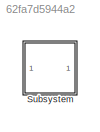
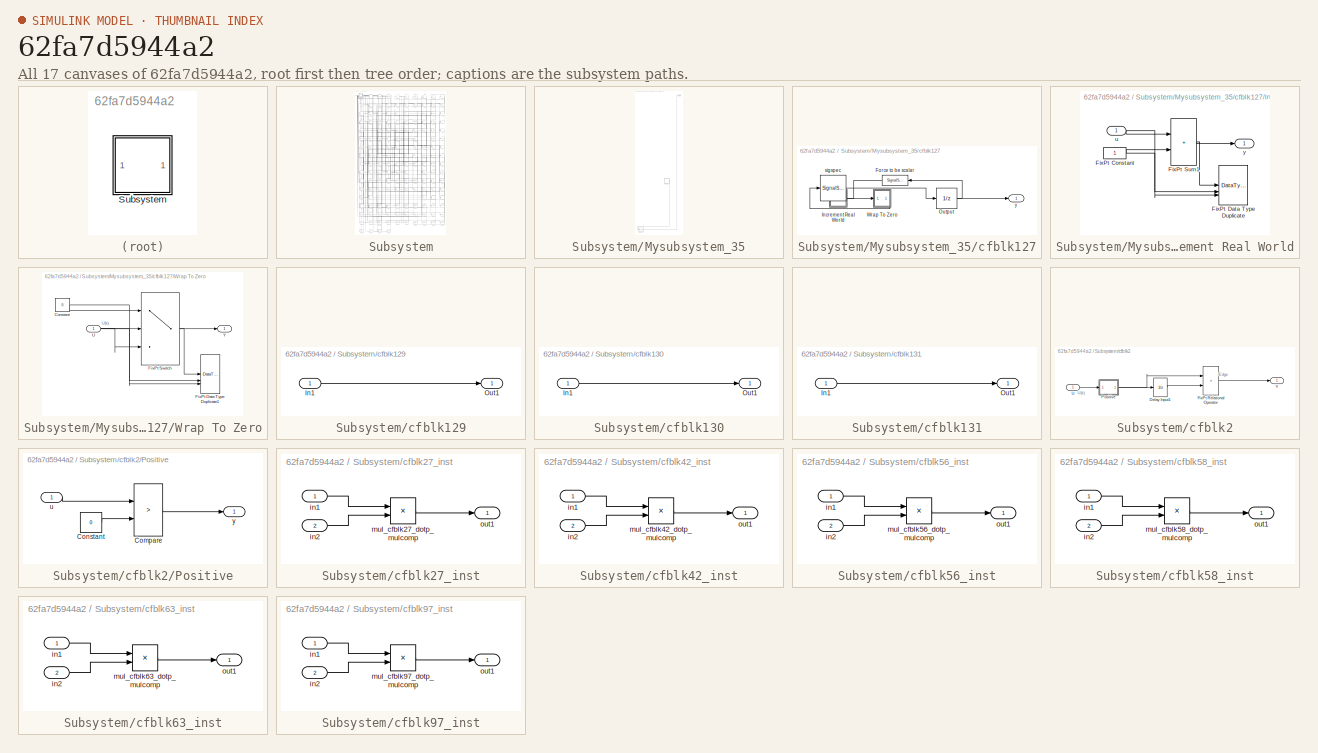
[diagram: thumbnail index - all 17 canvases of the model, root first then tree order]
MODEL slx_62fa7d5944a2
KIND model
CONFIG AbsTol = auto
CONFIG EnableMultiTasking = off
CONFIG FixedStep = auto
CONFIG MaxStep = auto
CONFIG MinStep = auto
CONFIG RelTol = 1e-3
CONFIG SampleTimeConstraint = Unconstrained
CONFIG SolverName = VariableStepAuto
CONFIG StartTime = 0.0
CONFIG StopTime = 10.0
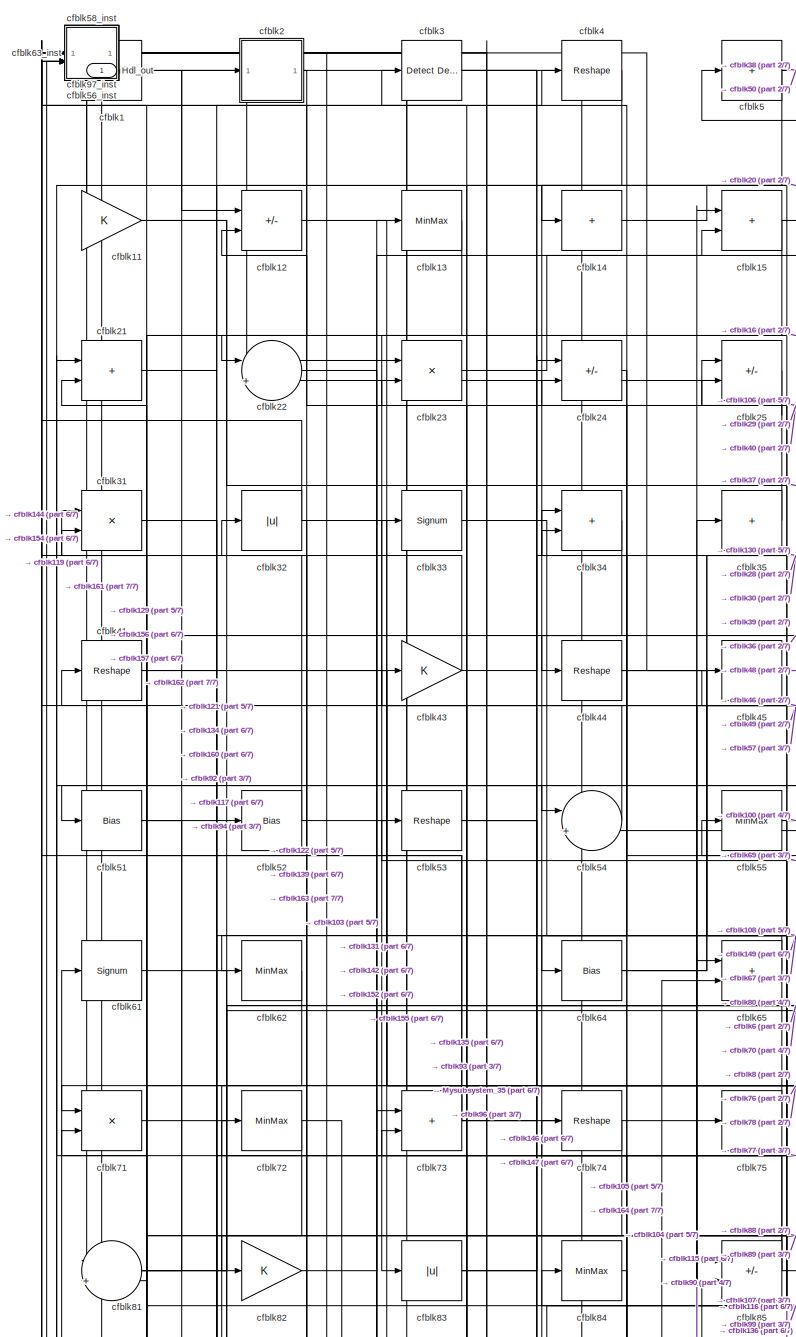
[diagram: Subsystem - part 1/7, top left region]
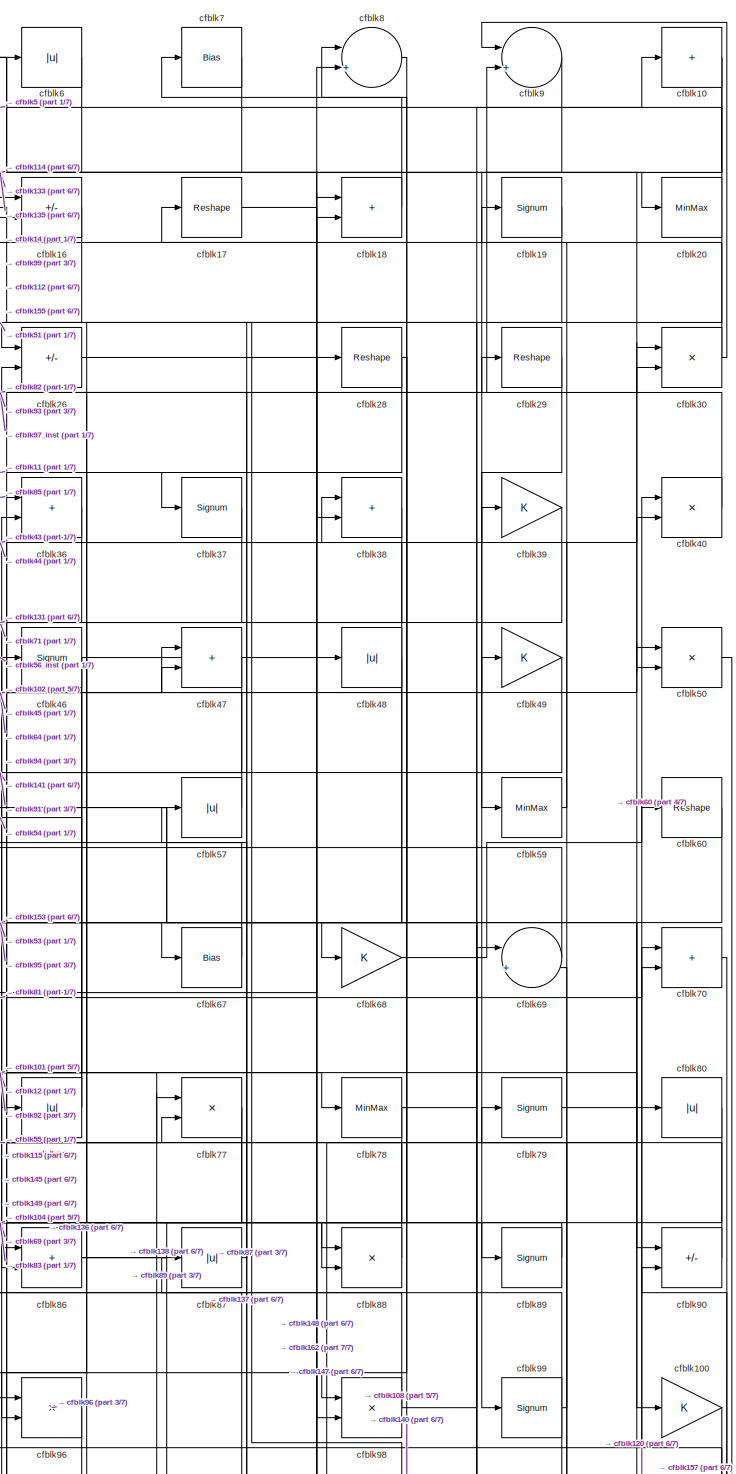
[diagram: Subsystem - part 2/7, top right region]
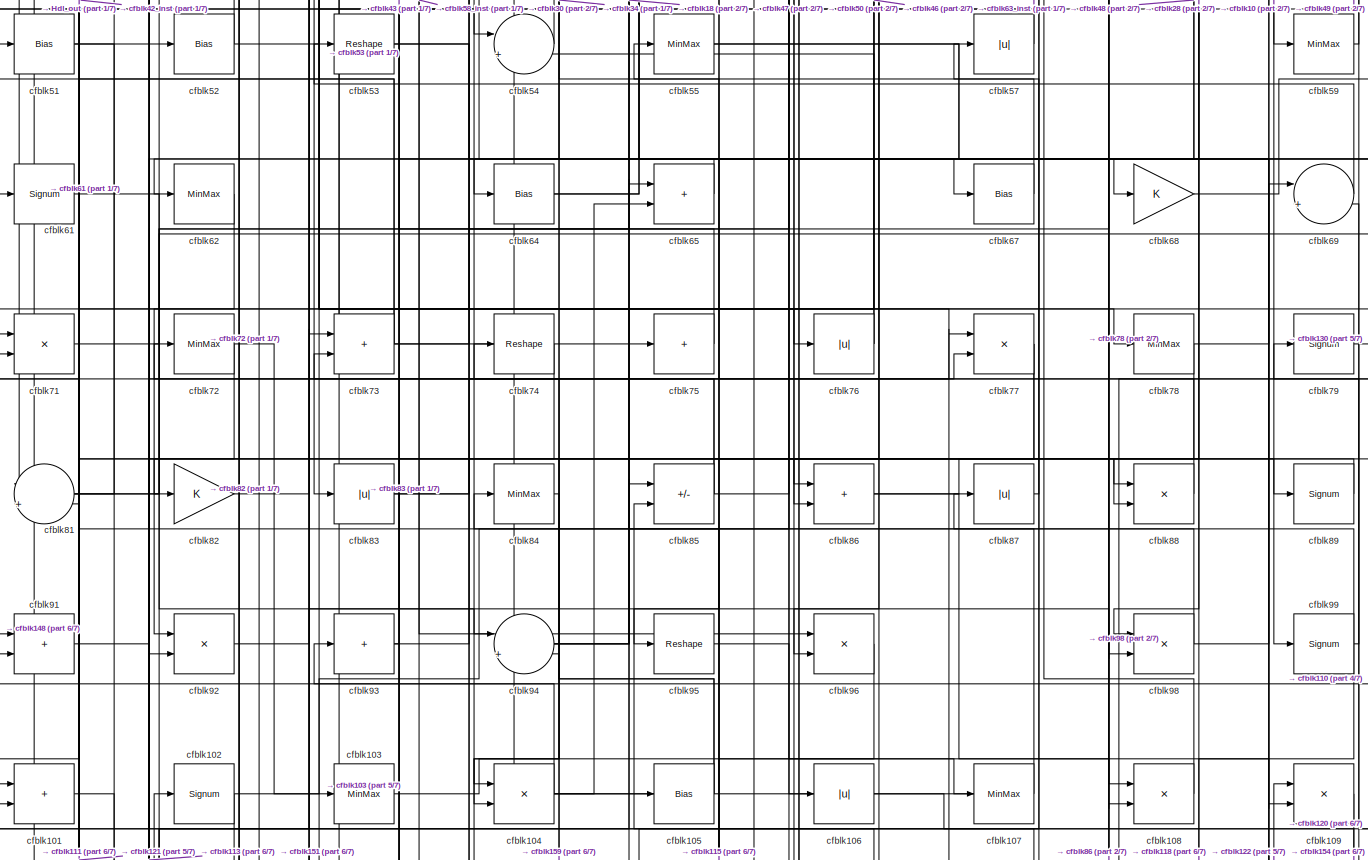
[diagram: Subsystem - part 3/7, full width, middle band]
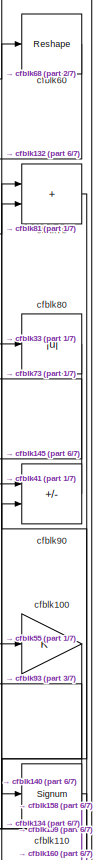
[diagram: Subsystem - part 4/7, middle right region]
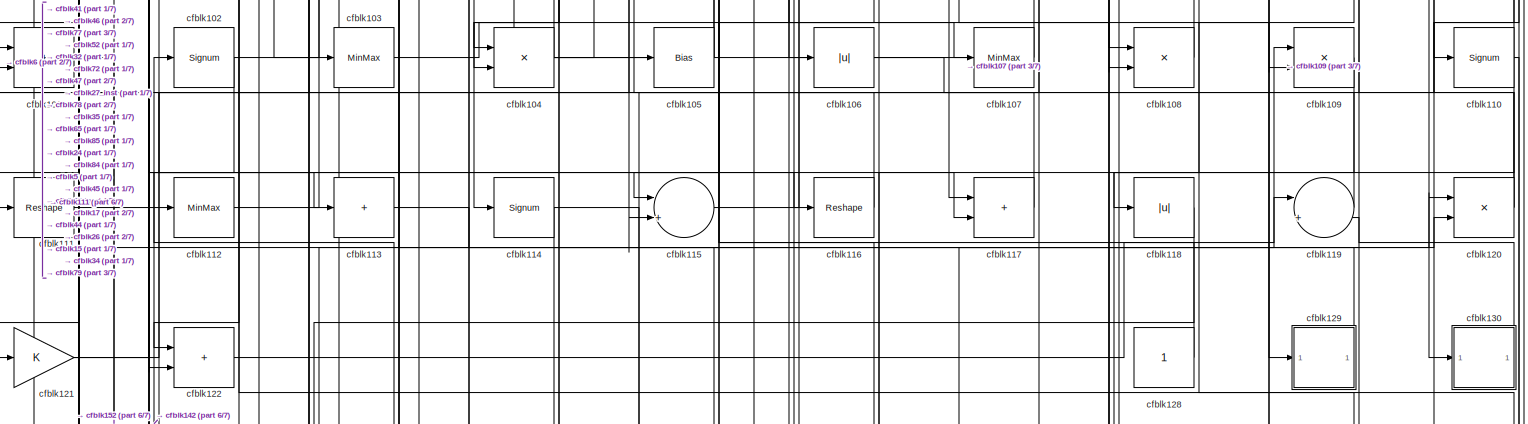
[diagram: Subsystem - part 5/7, full width, bottom band]
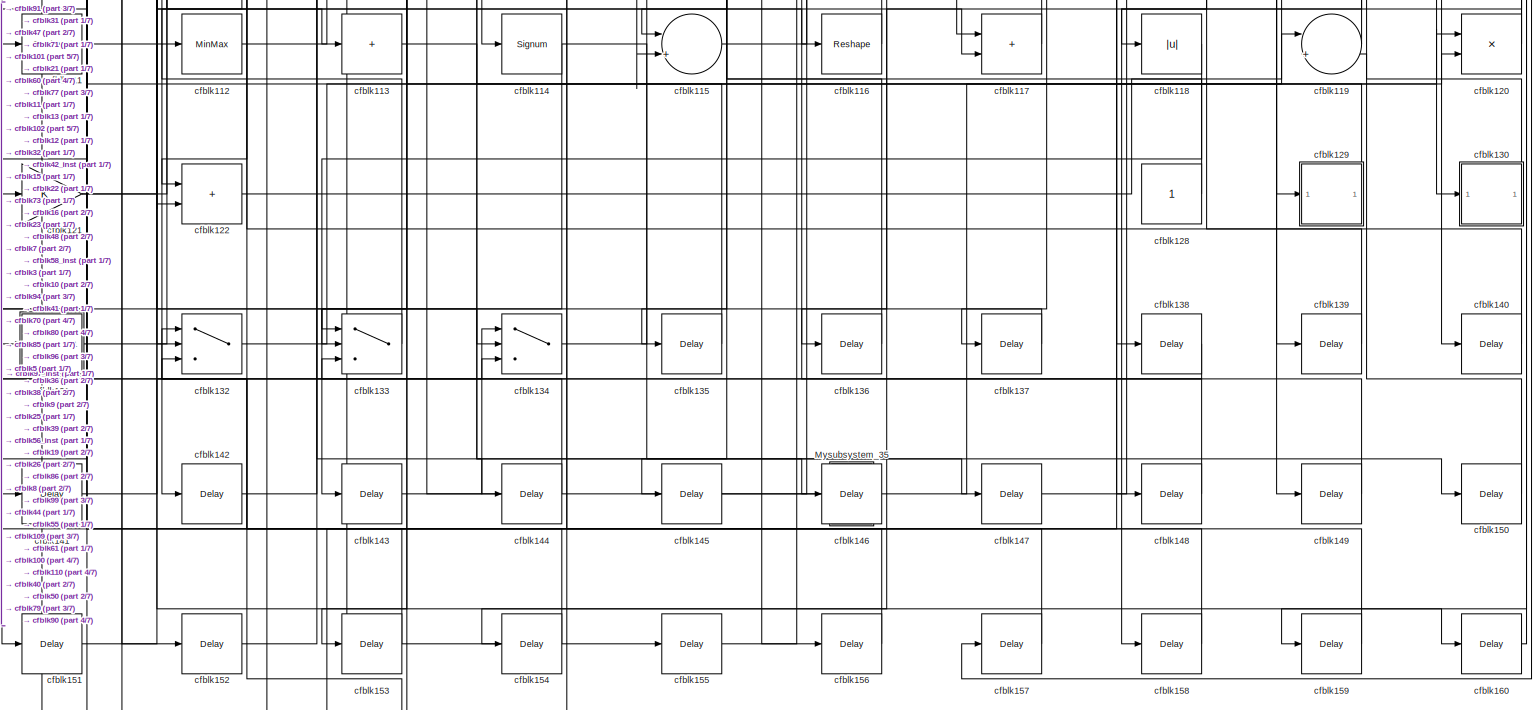
[diagram: Subsystem - part 6/7, full width, bottom band]
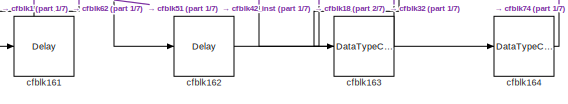
[diagram: Subsystem - part 7/7, bottom left region]
BLOCK [SubSystem] Subsystem
BLOCK [Outport] Subsystem/Hdl_out
  OutDataTypeStr = uint8
  SampleTime = 1
BLOCK [SubSystem] Subsystem/Mysubsystem_35
BLOCK [Outport] Subsystem/Mysubsystem_35/Out1
  SampleTime = 1
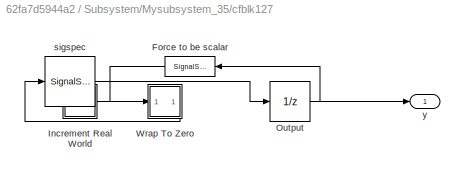
BLOCK [SubSystem] Subsystem/Mysubsystem_35/cfblk127
BLOCK [SignalSpecification] Subsystem/Mysubsystem_35/cfblk127/Force to be scalar
  Dimensions = 1
  DisableCoverage = on
BLOCK [SubSystem] Subsystem/Mysubsystem_35/cfblk127/Increment Real World
BLOCK [Constant] Subsystem/Mysubsystem_35/cfblk127/Increment Real World/FixPt Constant
  DisableCoverage = on
  OutDataTypeStr = Inherit: Inherit via back propagation
  SampleTime = -1
BLOCK [DataTypeDuplicate] Subsystem/Mysubsystem_35/cfblk127/Increment Real World/FixPt Data Type Duplicate
  DisableCoverage = on
  NumInputPorts = 3
BLOCK [Sum] Subsystem/Mysubsystem_35/cfblk127/Increment Real World/FixPt Sum1
  IconShape = rectangular
  InputSameDT = on
  LockScale = on
  OutDataTypeStr = Inherit: Inherit via back propagation
BLOCK [Inport] Subsystem/Mysubsystem_35/cfblk127/Increment Real World/u
  OutDataTypeStr = uint16
  SampleTime = 1
BLOCK [Outport] Subsystem/Mysubsystem_35/cfblk127/Increment Real World/y
  SampleTime = 1
BLOCK [UnitDelay] Subsystem/Mysubsystem_35/cfblk127/Output
  HasFrameUpgradeWarning = on
  InitialCondition = 0.0
  SampleTime = tsamp
BLOCK [SubSystem] Subsystem/Mysubsystem_35/cfblk127/Wrap To Zero
BLOCK [Constant] Subsystem/Mysubsystem_35/cfblk127/Wrap To Zero/Constant
  DisableCoverage = on
  OutDataTypeStr = Inherit: Inherit via back propagation
  SampleTime = -1
  Value = 0
BLOCK [DataTypeDuplicate] Subsystem/Mysubsystem_35/cfblk127/Wrap To Zero/FixPt Data Type Duplicate1
  DisableCoverage = on
  NumInputPorts = 3
BLOCK [Switch] Subsystem/Mysubsystem_35/cfblk127/Wrap To Zero/FixPt Switch
  Criteria = u2 > Threshold
  InputSameDT = off
  OutDataTypeStr = Inherit: Inherit via back propagation
  SaturateOnIntegerOverflow = off
  Threshold = Threshold
  ZeroCross = off
BLOCK [Inport] Subsystem/Mysubsystem_35/cfblk127/Wrap To Zero/U
  OutDataTypeStr = uint16
  SampleTime = 1
BLOCK [Outport] Subsystem/Mysubsystem_35/cfblk127/Wrap To Zero/Y
  SampleTime = 1
BLOCK [SignalSpecification] Subsystem/Mysubsystem_35/cfblk127/sigspec
  Dimensions = 1
  OutDataTypeStr = uint16
BLOCK [Outport] Subsystem/Mysubsystem_35/cfblk127/y
  SampleTime = 1
BLOCK [DataTypeConversion] Subsystem/Mysubsystem_35/cfblk165
  OutDataTypeStr = uint8
  RndMeth = Floor
  SaturateOnIntegerOverflow = off
BLOCK [Reference] Subsystem/cfblk1  REF=hdlsllib/Logic and Bit
Operations/Bit Shift
  SourceBlock = hdlsllib/Logic and Bit\nOperations/Bit Shift
  SourceType = Bit Shift
BLOCK [Sum] Subsystem/cfblk10
  IconShape = rectangular
  Inputs = +
  OutDataTypeStr = uint8
BLOCK [Gain] Subsystem/cfblk100
  OutDataTypeStr = uint8
BLOCK [Sum] Subsystem/cfblk101
  IconShape = rectangular
  OutDataTypeStr = uint8
BLOCK [Signum] Subsystem/cfblk102
BLOCK [MinMax] Subsystem/cfblk103
  OutDataTypeStr = uint8
BLOCK [Product] Subsystem/cfblk104
  Inputs = */
  OutDataTypeStr = uint8
  RndMeth = Zero
  SaturateOnIntegerOverflow = on
BLOCK [Bias] Subsystem/cfblk105
  Bias = 0.0
  SaturateOnIntegerOverflow = off
BLOCK [Abs] Subsystem/cfblk106
  OutDataTypeStr = uint8
  SaturateOnIntegerOverflow = off
BLOCK [MinMax] Subsystem/cfblk107
  OutDataTypeStr = uint8
BLOCK [Product] Subsystem/cfblk108
  Inputs = */
  OutDataTypeStr = uint8
  RndMeth = Zero
  SaturateOnIntegerOverflow = on
BLOCK [Product] Subsystem/cfblk109
  Inputs = */
  OutDataTypeStr = uint8
  RndMeth = Zero
  SaturateOnIntegerOverflow = on
BLOCK [Gain] Subsystem/cfblk11
  OutDataTypeStr = uint8
BLOCK [Signum] Subsystem/cfblk110
BLOCK [Reshape] Subsystem/cfblk111
BLOCK [MinMax] Subsystem/cfblk112
  OutDataTypeStr = uint8
BLOCK [Sum] Subsystem/cfblk113
  IconShape = rectangular
  Inputs = +
  OutDataTypeStr = uint8
BLOCK [Signum] Subsystem/cfblk114
BLOCK [Sum] Subsystem/cfblk115
  Inputs = |++
  OutDataTypeStr = uint8
BLOCK [Reshape] Subsystem/cfblk116
BLOCK [Sum] Subsystem/cfblk117
  IconShape = rectangular
  OutDataTypeStr = uint8
BLOCK [Abs] Subsystem/cfblk118
  OutDataTypeStr = uint8
  SaturateOnIntegerOverflow = off
BLOCK [Sum] Subsystem/cfblk119
  Inputs = |++
  OutDataTypeStr = uint8
BLOCK [Sum] Subsystem/cfblk12
  IconShape = rectangular
  Inputs = +-
  OutDataTypeStr = uint8
BLOCK [Product] Subsystem/cfblk120
  Inputs = */
  OutDataTypeStr = uint8
  RndMeth = Zero
  SaturateOnIntegerOverflow = on
BLOCK [Gain] Subsystem/cfblk121
  OutDataTypeStr = uint8
BLOCK [Sum] Subsystem/cfblk122
  IconShape = rectangular
  OutDataTypeStr = uint8
BLOCK [Constant] Subsystem/cfblk128
  OutDataTypeStr = uint8
  SampleTime = -1
BLOCK [SubSystem] Subsystem/cfblk129
BLOCK [Inport] Subsystem/cfblk129/In1
  OutDataTypeStr = uint8
  PortDimensions = 1
  SampleTime = 1
BLOCK [Outport] Subsystem/cfblk129/Out1
  SampleTime = 1
BLOCK [MinMax] Subsystem/cfblk13
  OutDataTypeStr = uint8
BLOCK [SubSystem] Subsystem/cfblk130
BLOCK [Inport] Subsystem/cfblk130/In1
  OutDataTypeStr = uint8
  PortDimensions = 1
  SampleTime = 1
BLOCK [Outport] Subsystem/cfblk130/Out1
  SampleTime = 1
BLOCK [SubSystem] Subsystem/cfblk131
BLOCK [Inport] Subsystem/cfblk131/In1
  OutDataTypeStr = uint8
  PortDimensions = 1
  SampleTime = 1
BLOCK [Outport] Subsystem/cfblk131/Out1
  SampleTime = 1
BLOCK [Switch] Subsystem/cfblk132
  InputSameDT = off
  OutDataTypeStr = uint8
  SaturateOnIntegerOverflow = off
BLOCK [Switch] Subsystem/cfblk133
  InputSameDT = off
  OutDataTypeStr = uint8
  SaturateOnIntegerOverflow = off
BLOCK [Switch] Subsystem/cfblk134
  InputSameDT = off
  OutDataTypeStr = uint8
  SaturateOnIntegerOverflow = off
BLOCK [Delay] Subsystem/cfblk135
  InputPortMap = u0
  SampleTime = 1
BLOCK [Delay] Subsystem/cfblk136
  InputPortMap = u0
  SampleTime = 1
BLOCK [Delay] Subsystem/cfblk137
  InputPortMap = u0
  SampleTime = 1
BLOCK [Delay] Subsystem/cfblk138
  InputPortMap = u0
  SampleTime = 1
BLOCK [Delay] Subsystem/cfblk139
  InputPortMap = u0
  SampleTime = 1
BLOCK [Sum] Subsystem/cfblk14
  IconShape = rectangular
  Inputs = +
  OutDataTypeStr = uint8
BLOCK [Delay] Subsystem/cfblk140
  InputPortMap = u0
  SampleTime = 1
BLOCK [Delay] Subsystem/cfblk141
  InputPortMap = u0
  SampleTime = 1
BLOCK [Delay] Subsystem/cfblk142
  InputPortMap = u0
  SampleTime = 1
BLOCK [Delay] Subsystem/cfblk143
  InputPortMap = u0
  SampleTime = 1
BLOCK [Delay] Subsystem/cfblk144
  InputPortMap = u0
  SampleTime = 1
BLOCK [Delay] Subsystem/cfblk145
  InputPortMap = u0
  SampleTime = 1
BLOCK [Delay] Subsystem/cfblk146
  InputPortMap = u0
  SampleTime = 1
BLOCK [Delay] Subsystem/cfblk147
  InputPortMap = u0
  SampleTime = 1
BLOCK [Delay] Subsystem/cfblk148
  InputPortMap = u0
  SampleTime = 1
BLOCK [Delay] Subsystem/cfblk149
  InputPortMap = u0
  SampleTime = 1
BLOCK [Sum] Subsystem/cfblk15
  IconShape = rectangular
  OutDataTypeStr = uint8
BLOCK [Delay] Subsystem/cfblk150
  InputPortMap = u0
  SampleTime = 1
BLOCK [Delay] Subsystem/cfblk151
  InputPortMap = u0
  SampleTime = 1
BLOCK [Delay] Subsystem/cfblk152
  InputPortMap = u0
  SampleTime = 1
BLOCK [Delay] Subsystem/cfblk153
  InputPortMap = u0
  SampleTime = 1
BLOCK [Delay] Subsystem/cfblk154
  InputPortMap = u0
  SampleTime = 1
BLOCK [Delay] Subsystem/cfblk155
  InputPortMap = u0
  SampleTime = 1
BLOCK [Delay] Subsystem/cfblk156
  InputPortMap = u0
  SampleTime = 1
BLOCK [Delay] Subsystem/cfblk157
  InputPortMap = u0
  SampleTime = 1
BLOCK [Delay] Subsystem/cfblk158
  InputPortMap = u0
  SampleTime = 1
BLOCK [Delay] Subsystem/cfblk159
  InputPortMap = u0
  SampleTime = 1
BLOCK [Sum] Subsystem/cfblk16
  IconShape = rectangular
  Inputs = +-
  OutDataTypeStr = uint8
BLOCK [Delay] Subsystem/cfblk160
  InputPortMap = u0
  SampleTime = 1
BLOCK [Delay] Subsystem/cfblk161
  InputPortMap = u0
  SampleTime = 1
BLOCK [Delay] Subsystem/cfblk162
  InputPortMap = u0
  SampleTime = 1
BLOCK [DataTypeConversion] Subsystem/cfblk163
  OutDataTypeStr = uint8
  RndMeth = Floor
  SaturateOnIntegerOverflow = off
BLOCK [DataTypeConversion] Subsystem/cfblk164
  OutDataTypeStr = uint8
  RndMeth = Floor
  SaturateOnIntegerOverflow = off
BLOCK [Reshape] Subsystem/cfblk17
BLOCK [Sum] Subsystem/cfblk18
  IconShape = rectangular
  OutDataTypeStr = uint8
BLOCK [Signum] Subsystem/cfblk19
BLOCK [SubSystem] Subsystem/cfblk2
BLOCK [UnitDelay] Subsystem/cfblk2/Delay Input1
  Description = Store in Global RAM
  DisableCoverage = on
  HasFrameUpgradeWarning = on
  InitialCondition = vinit
  SampleTime = -1
BLOCK [RelationalOperator] Subsystem/cfblk2/FixPt Relational Operator
  InputSameDT = off
  Operator = >
  OutDataTypeStr = fixdt(0, 8)
  ZeroCross = off
BLOCK [SubSystem] Subsystem/cfblk2/Positive
BLOCK [RelationalOperator] Subsystem/cfblk2/Positive/Compare
  Operator = >
  OutDataTypeStr = boolean
  ZeroCross = off
BLOCK [Constant] Subsystem/cfblk2/Positive/Constant
  DisableCoverage = on
  OutDataTypeStr = Inherit: Inherit via back propagation
  PreserveConstantTs = on
  SampleTime = -1
  Value = 0
BLOCK [Inport] Subsystem/cfblk2/Positive/u
  OutDataTypeStr = uint8
  SampleTime = 1
BLOCK [Outport] Subsystem/cfblk2/Positive/y
  SampleTime = 1
BLOCK [Inport] Subsystem/cfblk2/U
  OutDataTypeStr = uint8
  SampleTime = 1
BLOCK [Outport] Subsystem/cfblk2/Y
  SampleTime = 1
BLOCK [MinMax] Subsystem/cfblk20
  OutDataTypeStr = uint8
BLOCK [Sum] Subsystem/cfblk21
  IconShape = rectangular
  OutDataTypeStr = uint8
BLOCK [Sum] Subsystem/cfblk22
  Inputs = |++
  OutDataTypeStr = uint8
BLOCK [Product] Subsystem/cfblk23
  Inputs = */
  OutDataTypeStr = uint8
  RndMeth = Zero
  SaturateOnIntegerOverflow = on
BLOCK [Sum] Subsystem/cfblk24
  IconShape = rectangular
  Inputs = +-
  OutDataTypeStr = uint8
BLOCK [Sum] Subsystem/cfblk25
  IconShape = rectangular
  Inputs = +-
  OutDataTypeStr = uint8
BLOCK [Sum] Subsystem/cfblk26
  IconShape = rectangular
  Inputs = +-
  OutDataTypeStr = uint8
BLOCK [SubSystem] Subsystem/cfblk27_inst
BLOCK [Inport] Subsystem/cfblk27_inst/in1
  OutDataTypeStr = uint8
  SampleTime = 1
BLOCK [Inport] Subsystem/cfblk27_inst/in2
  OutDataTypeStr = uint8
  Port = 2
  SampleTime = 1
BLOCK [Product] Subsystem/cfblk27_inst/mul_cfblk27_dotp_mulcomp
  Inputs = **
  OutDataTypeStr = uint8
  SampleTime = 1
BLOCK [Outport] Subsystem/cfblk27_inst/out1
  OutDataTypeStr = uint8
  SampleTime = 1
BLOCK [Reshape] Subsystem/cfblk28
BLOCK [Reshape] Subsystem/cfblk29
BLOCK [Reference] Subsystem/cfblk3  REF=simulink/Logic and Bit
Operations/Detect
Decrease
  LibrarySourceBlock = hdlsllib/Logic and Bit\nOperations/Detect\nDecrease
  SourceBlock = simulink/Logic and Bit\nOperations/Detect\nDecrease
  SourceType = Detect Decrease
BLOCK [Product] Subsystem/cfblk30
  Inputs = */
  OutDataTypeStr = uint8
  RndMeth = Zero
  SaturateOnIntegerOverflow = on
BLOCK [Product] Subsystem/cfblk31
  Inputs = */
  OutDataTypeStr = uint8
  RndMeth = Zero
  SaturateOnIntegerOverflow = on
BLOCK [Abs] Subsystem/cfblk32
  OutDataTypeStr = uint8
  SaturateOnIntegerOverflow = off
BLOCK [Signum] Subsystem/cfblk33
BLOCK [Sum] Subsystem/cfblk34
  IconShape = rectangular
  OutDataTypeStr = uint8
BLOCK [Sum] Subsystem/cfblk35
  IconShape = rectangular
  Inputs = +
  OutDataTypeStr = uint8
BLOCK [Sum] Subsystem/cfblk36
  IconShape = rectangular
  OutDataTypeStr = uint8
BLOCK [Signum] Subsystem/cfblk37
BLOCK [Sum] Subsystem/cfblk38
  IconShape = rectangular
  OutDataTypeStr = uint8
BLOCK [Gain] Subsystem/cfblk39
  OutDataTypeStr = uint8
BLOCK [Reshape] Subsystem/cfblk4
BLOCK [Product] Subsystem/cfblk40
  Inputs = */
  OutDataTypeStr = uint8
  RndMeth = Zero
  SaturateOnIntegerOverflow = on
BLOCK [Reshape] Subsystem/cfblk41
BLOCK [SubSystem] Subsystem/cfblk42_inst
BLOCK [Inport] Subsystem/cfblk42_inst/in1
  OutDataTypeStr = uint8
  SampleTime = 1
BLOCK [Inport] Subsystem/cfblk42_inst/in2
  OutDataTypeStr = uint8
  Port = 2
  SampleTime = 1
BLOCK [Product] Subsystem/cfblk42_inst/mul_cfblk42_dotp_mulcomp
  Inputs = **
  OutDataTypeStr = uint8
  SampleTime = 1
BLOCK [Outport] Subsystem/cfblk42_inst/out1
  OutDataTypeStr = uint8
  SampleTime = 1
BLOCK [Gain] Subsystem/cfblk43
  OutDataTypeStr = uint8
BLOCK [Reshape] Subsystem/cfblk44
BLOCK [Bias] Subsystem/cfblk45
  Bias = 0.0
  SaturateOnIntegerOverflow = off
BLOCK [Signum] Subsystem/cfblk46
BLOCK [Sum] Subsystem/cfblk47
  IconShape = rectangular
  OutDataTypeStr = uint8
BLOCK [Abs] Subsystem/cfblk48
  OutDataTypeStr = uint8
  SaturateOnIntegerOverflow = off
BLOCK [Gain] Subsystem/cfblk49
  OutDataTypeStr = uint8
BLOCK [Sum] Subsystem/cfblk5
  IconShape = rectangular
  Inputs = +
  OutDataTypeStr = uint8
BLOCK [Product] Subsystem/cfblk50
  Inputs = */
  OutDataTypeStr = uint8
  RndMeth = Zero
  SaturateOnIntegerOverflow = on
BLOCK [Bias] Subsystem/cfblk51
  Bias = 0.0
  SaturateOnIntegerOverflow = off
BLOCK [Bias] Subsystem/cfblk52
  Bias = 0.0
  SaturateOnIntegerOverflow = off
BLOCK [Reshape] Subsystem/cfblk53
BLOCK [Sum] Subsystem/cfblk54
  Inputs = |++
  OutDataTypeStr = uint8
BLOCK [MinMax] Subsystem/cfblk55
  OutDataTypeStr = uint8
BLOCK [SubSystem] Subsystem/cfblk56_inst
BLOCK [Inport] Subsystem/cfblk56_inst/in1
  OutDataTypeStr = uint8
  SampleTime = 1
BLOCK [Inport] Subsystem/cfblk56_inst/in2
  OutDataTypeStr = uint8
  Port = 2
  SampleTime = 1
BLOCK [Product] Subsystem/cfblk56_inst/mul_cfblk56_dotp_mulcomp
  Inputs = **
  OutDataTypeStr = uint8
  SampleTime = 1
BLOCK [Outport] Subsystem/cfblk56_inst/out1
  OutDataTypeStr = uint8
  SampleTime = 1
BLOCK [Abs] Subsystem/cfblk57
  OutDataTypeStr = uint8
  SaturateOnIntegerOverflow = off
BLOCK [SubSystem] Subsystem/cfblk58_inst
BLOCK [Inport] Subsystem/cfblk58_inst/in1
  OutDataTypeStr = uint8
  SampleTime = 1
BLOCK [Inport] Subsystem/cfblk58_inst/in2
  OutDataTypeStr = uint8
  Port = 2
  SampleTime = 1
BLOCK [Product] Subsystem/cfblk58_inst/mul_cfblk58_dotp_mulcomp
  Inputs = **
  OutDataTypeStr = uint8
  SampleTime = 1
BLOCK [Outport] Subsystem/cfblk58_inst/out1
  OutDataTypeStr = uint8
  SampleTime = 1
BLOCK [MinMax] Subsystem/cfblk59
  OutDataTypeStr = uint8
BLOCK [Abs] Subsystem/cfblk6
  OutDataTypeStr = uint8
  SaturateOnIntegerOverflow = off
BLOCK [Reshape] Subsystem/cfblk60
BLOCK [Signum] Subsystem/cfblk61
BLOCK [MinMax] Subsystem/cfblk62
  OutDataTypeStr = uint8
BLOCK [SubSystem] Subsystem/cfblk63_inst
BLOCK [Inport] Subsystem/cfblk63_inst/in1
  OutDataTypeStr = uint8
  SampleTime = 1
BLOCK [Inport] Subsystem/cfblk63_inst/in2
  OutDataTypeStr = uint8
  Port = 2
  SampleTime = 1
BLOCK [Product] Subsystem/cfblk63_inst/mul_cfblk63_dotp_mulcomp
  Inputs = **
  OutDataTypeStr = uint8
  SampleTime = 1
BLOCK [Outport] Subsystem/cfblk63_inst/out1
  OutDataTypeStr = uint8
  SampleTime = 1
BLOCK [Bias] Subsystem/cfblk64
  Bias = 0.0
  SaturateOnIntegerOverflow = off
BLOCK [Sum] Subsystem/cfblk65
  IconShape = rectangular
  OutDataTypeStr = uint8
BLOCK [Bias] Subsystem/cfblk67
  Bias = 0.0
  SaturateOnIntegerOverflow = off
BLOCK [Gain] Subsystem/cfblk68
  OutDataTypeStr = uint8
BLOCK [Sum] Subsystem/cfblk69
  Inputs = |++
  OutDataTypeStr = uint8
BLOCK [Bias] Subsystem/cfblk7
  Bias = 0.0
  SaturateOnIntegerOverflow = off
BLOCK [Sum] Subsystem/cfblk70
  IconShape = rectangular
  OutDataTypeStr = uint8
BLOCK [Product] Subsystem/cfblk71
  Inputs = */
  OutDataTypeStr = uint8
  RndMeth = Zero
  SaturateOnIntegerOverflow = on
BLOCK [MinMax] Subsystem/cfblk72
  OutDataTypeStr = uint8
BLOCK [Sum] Subsystem/cfblk73
  IconShape = rectangular
  OutDataTypeStr = uint8
BLOCK [Reshape] Subsystem/cfblk74
BLOCK [Sum] Subsystem/cfblk75
  IconShape = rectangular
  Inputs = +
  OutDataTypeStr = uint8
BLOCK [Abs] Subsystem/cfblk76
  OutDataTypeStr = uint8
  SaturateOnIntegerOverflow = off
BLOCK [Product] Subsystem/cfblk77
  Inputs = */
  OutDataTypeStr = uint8
  RndMeth = Zero
  SaturateOnIntegerOverflow = on
BLOCK [MinMax] Subsystem/cfblk78
  OutDataTypeStr = uint8
BLOCK [Signum] Subsystem/cfblk79
BLOCK [Sum] Subsystem/cfblk8
  Inputs = |++
  OutDataTypeStr = uint8
BLOCK [Abs] Subsystem/cfblk80
  OutDataTypeStr = uint8
  SaturateOnIntegerOverflow = off
BLOCK [Sum] Subsystem/cfblk81
  Inputs = |++
  OutDataTypeStr = uint8
BLOCK [Gain] Subsystem/cfblk82
  OutDataTypeStr = uint8
BLOCK [Abs] Subsystem/cfblk83
  OutDataTypeStr = uint8
  SaturateOnIntegerOverflow = off
BLOCK [MinMax] Subsystem/cfblk84
  OutDataTypeStr = uint8
BLOCK [Sum] Subsystem/cfblk85
  IconShape = rectangular
  Inputs = +-
  OutDataTypeStr = uint8
BLOCK [Sum] Subsystem/cfblk86
  IconShape = rectangular
  OutDataTypeStr = uint8
BLOCK [Abs] Subsystem/cfblk87
  OutDataTypeStr = uint8
  SaturateOnIntegerOverflow = off
BLOCK [Product] Subsystem/cfblk88
  Inputs = */
  OutDataTypeStr = uint8
  RndMeth = Zero
  SaturateOnIntegerOverflow = on
BLOCK [Signum] Subsystem/cfblk89
BLOCK [Sum] Subsystem/cfblk9
  Inputs = |++
  OutDataTypeStr = uint8
BLOCK [Sum] Subsystem/cfblk90
  IconShape = rectangular
  Inputs = +-
  OutDataTypeStr = uint8
BLOCK [Sum] Subsystem/cfblk91
  IconShape = rectangular
  OutDataTypeStr = uint8
BLOCK [Product] Subsystem/cfblk92
  Inputs = */
  OutDataTypeStr = uint8
  RndMeth = Zero
  SaturateOnIntegerOverflow = on
BLOCK [Sum] Subsystem/cfblk93
  IconShape = rectangular
  Inputs = +
  OutDataTypeStr = uint8
BLOCK [Sum] Subsystem/cfblk94
  Inputs = |++
  OutDataTypeStr = uint8
BLOCK [Reshape] Subsystem/cfblk95
BLOCK [Product] Subsystem/cfblk96
  Inputs = */
  OutDataTypeStr = uint8
  RndMeth = Zero
  SaturateOnIntegerOverflow = on
BLOCK [SubSystem] Subsystem/cfblk97_inst
BLOCK [Inport] Subsystem/cfblk97_inst/in1
  OutDataTypeStr = uint8
  SampleTime = 1
BLOCK [Inport] Subsystem/cfblk97_inst/in2
  OutDataTypeStr = uint8
  Port = 2
  SampleTime = 1
BLOCK [Product] Subsystem/cfblk97_inst/mul_cfblk97_dotp_mulcomp
  Inputs = **
  OutDataTypeStr = uint8
  SampleTime = 1
BLOCK [Outport] Subsystem/cfblk97_inst/out1
  OutDataTypeStr = uint8
  SampleTime = 1
BLOCK [Product] Subsystem/cfblk98
  Inputs = */
  OutDataTypeStr = uint8
  RndMeth = Zero
  SaturateOnIntegerOverflow = on
BLOCK [Signum] Subsystem/cfblk99
ANNOTATION Subsystem/Mysubsystem_35/cfblk127/Wrap To Zero: U(k)
ANNOTATION Subsystem/cfblk2: Edge
ANNOTATION Subsystem/cfblk2: U(k)
LINE Subsystem/Mysubsystem_35/cfblk127:1 -> Subsystem/Mysubsystem_35/cfblk165:1
LINE Subsystem/Mysubsystem_35/cfblk165:1 -> Subsystem/Mysubsystem_35/Out1:1
LINE Subsystem/Mysubsystem_35:1 -> Subsystem/cfblk58_inst:1
LINE Subsystem/cfblk100:1 -> Subsystem/cfblk140:1
LINE Subsystem/cfblk101:1 -> Subsystem/cfblk152:1
NET Subsystem/cfblk102:1 -> Subsystem/cfblk142:1, Subsystem/cfblk47:1
LINE Subsystem/cfblk103:1 -> Subsystem/cfblk107:1
NET Subsystem/cfblk104:1 -> Subsystem/cfblk27_inst:2, Subsystem/cfblk65:2, Subsystem/cfblk85:2
NET Subsystem/cfblk105:1 -> Subsystem/cfblk24:2, Subsystem/cfblk84:1
LINE Subsystem/cfblk106:1 -> Subsystem/cfblk25:1
NET Subsystem/cfblk107:1 -> Subsystem/Hdl_out:1, Subsystem/cfblk42_inst:1
LINE Subsystem/cfblk108:1 -> Subsystem/cfblk26:1
LINE Subsystem/cfblk109:1 -> Subsystem/cfblk154:1
NET Subsystem/cfblk10:1 -> Subsystem/cfblk114:1, Subsystem/cfblk99:1
NET Subsystem/cfblk110:1 -> Subsystem/cfblk158:1, Subsystem/cfblk159:1, Subsystem/cfblk93:1
LINE Subsystem/cfblk111:1 -> Subsystem/cfblk102:1
LINE Subsystem/cfblk112:1 -> Subsystem/cfblk16:1
LINE Subsystem/cfblk113:1 -> Subsystem/cfblk120:2
NET Subsystem/cfblk114:1 -> Subsystem/cfblk150:1, Subsystem/cfblk151:1
LINE Subsystem/cfblk115:1 -> Subsystem/cfblk9:2
LINE Subsystem/cfblk116:1 -> Subsystem/cfblk25:2
LINE Subsystem/cfblk117:1 -> Subsystem/cfblk56_inst:1
LINE Subsystem/cfblk118:1 -> Subsystem/cfblk143:1
LINE Subsystem/cfblk119:1 -> Subsystem/cfblk61:1
NET Subsystem/cfblk11:1 -> Subsystem/cfblk117:2, Subsystem/cfblk37:1
NET Subsystem/cfblk120:1 -> Subsystem/cfblk40:1, Subsystem/cfblk79:1
NET Subsystem/cfblk121:1 -> Subsystem/cfblk35:1, Subsystem/cfblk52:1
LINE Subsystem/cfblk122:1 -> Subsystem/cfblk109:1
LINE Subsystem/cfblk128:1 -> Subsystem/cfblk105:1
LINE Subsystem/cfblk129/In1:1 -> Subsystem/cfblk129/Out1:1
LINE Subsystem/cfblk129:1 -> Subsystem/cfblk41:1
LINE Subsystem/cfblk12:1 -> Subsystem/cfblk78:1
LINE Subsystem/cfblk130/In1:1 -> Subsystem/cfblk130/Out1:1
LINE Subsystem/cfblk130:1 -> Subsystem/cfblk34:1
LINE Subsystem/cfblk131/In1:1 -> Subsystem/cfblk131/Out1:1
LINE Subsystem/cfblk131:1 -> Subsystem/cfblk13:1
LINE Subsystem/cfblk132:1 -> Subsystem/cfblk119:1
LINE Subsystem/cfblk133:1 -> Subsystem/cfblk112:1
LINE Subsystem/cfblk134:1 -> Subsystem/cfblk70:1
LINE Subsystem/cfblk135:1 -> Subsystem/cfblk23:2
LINE Subsystem/cfblk136:1 -> Subsystem/cfblk85:1
LINE Subsystem/cfblk137:1 -> Subsystem/cfblk133:2
LINE Subsystem/cfblk138:1 -> Subsystem/cfblk133:3
LINE Subsystem/cfblk139:1 -> Subsystem/cfblk12:2
LINE Subsystem/cfblk13:1 -> Subsystem/cfblk83:1
LINE Subsystem/cfblk140:1 -> Subsystem/cfblk8:1
LINE Subsystem/cfblk141:1 -> Subsystem/cfblk134:1
LINE Subsystem/cfblk142:1 -> Subsystem/cfblk15:2
LINE Subsystem/cfblk143:1 -> Subsystem/cfblk134:3
LINE Subsystem/cfblk144:1 -> Subsystem/cfblk97_inst:2
LINE Subsystem/cfblk145:1 -> Subsystem/cfblk38:1
LINE Subsystem/cfblk146:1 -> Subsystem/cfblk120:1
LINE Subsystem/cfblk147:1 -> Subsystem/cfblk40:2
LINE Subsystem/cfblk148:1 -> Subsystem/cfblk91:1
LINE Subsystem/cfblk149:1 -> Subsystem/cfblk36:2
LINE Subsystem/cfblk14:1 -> Subsystem/cfblk20:1
LINE Subsystem/cfblk150:1 -> Subsystem/cfblk119:2
LINE Subsystem/cfblk151:1 -> Subsystem/cfblk77:2
LINE Subsystem/cfblk152:1 -> Subsystem/cfblk73:1
LINE Subsystem/cfblk153:1 -> Subsystem/cfblk132:1
LINE Subsystem/cfblk154:1 -> Subsystem/cfblk56_inst:2
LINE Subsystem/cfblk155:1 -> Subsystem/cfblk16:2
LINE Subsystem/cfblk156:1 -> Subsystem/cfblk71:2
LINE Subsystem/cfblk157:1 -> Subsystem/cfblk31:1
LINE Subsystem/cfblk158:1 -> Subsystem/cfblk132:3
LINE Subsystem/cfblk159:1 -> Subsystem/cfblk94:2
NET Subsystem/cfblk15:1 -> Subsystem/cfblk129:1, Subsystem/cfblk81:2
LINE Subsystem/cfblk160:1 -> Subsystem/cfblk90:2
LINE Subsystem/cfblk161:1 -> Subsystem/cfblk1:1
LINE Subsystem/cfblk162:1 -> Subsystem/cfblk18:2
LINE Subsystem/cfblk163:1 -> Subsystem/cfblk32:1
LINE Subsystem/cfblk164:1 -> Subsystem/cfblk74:1
LINE Subsystem/cfblk16:1 -> Subsystem/cfblk51:1
LINE Subsystem/cfblk17:1 -> Subsystem/cfblk108:1
LINE Subsystem/cfblk18:1 -> Subsystem/cfblk7:1
LINE Subsystem/cfblk19:1 -> Subsystem/cfblk137:1
LINE Subsystem/cfblk1:1 -> Subsystem/cfblk12:1
NET Subsystem/cfblk20:1 -> Subsystem/cfblk5:1, Subsystem/cfblk86:2
NET Subsystem/cfblk21:1 -> Subsystem/cfblk116:1, Subsystem/cfblk4:1
LINE Subsystem/cfblk22:1 -> Subsystem/cfblk144:1
LINE Subsystem/cfblk23:1 -> Subsystem/cfblk15:1
LINE Subsystem/cfblk24:1 -> Subsystem/cfblk64:1
LINE Subsystem/cfblk25:1 -> Subsystem/cfblk22:2
LINE Subsystem/cfblk26:1 -> Subsystem/cfblk148:1
LINE Subsystem/cfblk27_inst/in1:1 -> Subsystem/cfblk27_inst/mul_cfblk27_dotp_mulcomp:1
LINE Subsystem/cfblk27_inst/in2:1 -> Subsystem/cfblk27_inst/mul_cfblk27_dotp_mulcomp:2
LINE Subsystem/cfblk27_inst/mul_cfblk27_dotp_mulcomp:1 -> Subsystem/cfblk27_inst/out1:1
NET Subsystem/cfblk27_inst:1 -> Subsystem/cfblk11:1, Subsystem/cfblk81:1
NET Subsystem/cfblk28:1 -> Subsystem/cfblk88:2, Subsystem/cfblk96:2, Subsystem/cfblk98:1
LINE Subsystem/cfblk29:1 -> Subsystem/cfblk59:1
LINE Subsystem/cfblk2:1 -> Subsystem/cfblk22:1
NET Subsystem/cfblk30:1 -> Subsystem/cfblk17:1, Subsystem/cfblk9:1
NET Subsystem/cfblk31:1 -> Subsystem/cfblk134:2, Subsystem/cfblk160:1
NET Subsystem/cfblk32:1 -> Subsystem/cfblk117:1, Subsystem/cfblk122:1, Subsystem/cfblk58_inst:2
LINE Subsystem/cfblk33:1 -> Subsystem/cfblk80:1
LINE Subsystem/cfblk34:1 -> Subsystem/cfblk44:1
LINE Subsystem/cfblk35:1 -> Subsystem/cfblk24:1
LINE Subsystem/cfblk36:1 -> Subsystem/cfblk71:1
LINE Subsystem/cfblk37:1 -> Subsystem/cfblk86:1
LINE Subsystem/cfblk38:1 -> Subsystem/cfblk131:1
LINE Subsystem/cfblk39:1 -> Subsystem/cfblk136:1
NET Subsystem/cfblk3:1 -> Subsystem/cfblk146:1, Subsystem/cfblk147:1
LINE Subsystem/cfblk40:1 -> Subsystem/cfblk97_inst:1
NET Subsystem/cfblk41:1 -> Subsystem/cfblk115:2, Subsystem/cfblk90:1
LINE Subsystem/cfblk42_inst/in1:1 -> Subsystem/cfblk42_inst/mul_cfblk42_dotp_mulcomp:1
LINE Subsystem/cfblk42_inst/in2:1 -> Subsystem/cfblk42_inst/mul_cfblk42_dotp_mulcomp:2
LINE Subsystem/cfblk42_inst/mul_cfblk42_dotp_mulcomp:1 -> Subsystem/cfblk42_inst/out1:1
NET Subsystem/cfblk42_inst:1 -> Subsystem/cfblk155:1, Subsystem/cfblk164:1
NET Subsystem/cfblk43:1 -> Subsystem/cfblk21:2, Subsystem/cfblk39:1
NET Subsystem/cfblk44:1 -> Subsystem/cfblk108:2, Subsystem/cfblk149:1, Subsystem/cfblk30:2
LINE Subsystem/cfblk45:1 -> Subsystem/cfblk106:1
NET Subsystem/cfblk46:1 -> Subsystem/cfblk101:1, Subsystem/cfblk92:1
LINE Subsystem/cfblk47:1 -> Subsystem/cfblk141:1
NET Subsystem/cfblk48:1 -> Subsystem/cfblk153:1, Subsystem/cfblk26:2, Subsystem/cfblk95:1
LINE Subsystem/cfblk49:1 -> Subsystem/cfblk91:2
LINE Subsystem/cfblk4:1 -> Subsystem/cfblk14:1
LINE Subsystem/cfblk50:1 -> Subsystem/cfblk157:1
NET Subsystem/cfblk51:1 -> Subsystem/cfblk162:1, Subsystem/cfblk49:1
NET Subsystem/cfblk52:1 -> Subsystem/cfblk42_inst:2, Subsystem/cfblk54:1
NET Subsystem/cfblk53:1 -> Subsystem/cfblk67:1, Subsystem/cfblk76:1
LINE Subsystem/cfblk54:1 -> Subsystem/cfblk33:1
NET Subsystem/cfblk55:1 -> Subsystem/cfblk100:1, Subsystem/cfblk139:1
LINE Subsystem/cfblk56_inst/in1:1 -> Subsystem/cfblk56_inst/mul_cfblk56_dotp_mulcomp:1
LINE Subsystem/cfblk56_inst/in2:1 -> Subsystem/cfblk56_inst/mul_cfblk56_dotp_mulcomp:2
LINE Subsystem/cfblk56_inst/mul_cfblk56_dotp_mulcomp:1 -> Subsystem/cfblk56_inst/out1:1
LINE Subsystem/cfblk56_inst:1 -> Subsystem/cfblk48:1
LINE Subsystem/cfblk57:1 -> Subsystem/cfblk63_inst:2
LINE Subsystem/cfblk58_inst/in1:1 -> Subsystem/cfblk58_inst/mul_cfblk58_dotp_mulcomp:1
LINE Subsystem/cfblk58_inst/in2:1 -> Subsystem/cfblk58_inst/mul_cfblk58_dotp_mulcomp:2
LINE Subsystem/cfblk58_inst/mul_cfblk58_dotp_mulcomp:1 -> Subsystem/cfblk58_inst/out1:1
LINE Subsystem/cfblk58_inst:1 -> Subsystem/cfblk96:1
LINE Subsystem/cfblk59:1 -> Subsystem/cfblk19:1
NET Subsystem/cfblk5:1 -> Subsystem/cfblk122:2, Subsystem/cfblk156:1, Subsystem/cfblk38:2, Subsystem/cfblk50:2
LINE Subsystem/cfblk60:1 -> Subsystem/cfblk132:2
LINE Subsystem/cfblk61:1 -> Subsystem/cfblk94:1
LINE Subsystem/cfblk62:1 -> Subsystem/cfblk161:1
LINE Subsystem/cfblk63_inst/in1:1 -> Subsystem/cfblk63_inst/mul_cfblk63_dotp_mulcomp:1
LINE Subsystem/cfblk63_inst/in2:1 -> Subsystem/cfblk63_inst/mul_cfblk63_dotp_mulcomp:2
LINE Subsystem/cfblk63_inst/mul_cfblk63_dotp_mulcomp:1 -> Subsystem/cfblk63_inst/out1:1
LINE Subsystem/cfblk63_inst:1 -> Subsystem/cfblk75:1
NET Subsystem/cfblk64:1 -> Subsystem/cfblk28:1, Subsystem/cfblk46:1
LINE Subsystem/cfblk65:1 -> Subsystem/cfblk62:1
LINE Subsystem/cfblk67:1 -> Subsystem/cfblk63_inst:1
LINE Subsystem/cfblk68:1 -> Subsystem/cfblk60:1
LINE Subsystem/cfblk69:1 -> Subsystem/cfblk53:1
LINE Subsystem/cfblk6:1 -> Subsystem/cfblk101:2
LINE Subsystem/cfblk70:1 -> Subsystem/cfblk110:1
LINE Subsystem/cfblk71:1 -> Subsystem/cfblk8:2
NET Subsystem/cfblk72:1 -> Subsystem/cfblk103:1, Subsystem/cfblk92:2
NET Subsystem/cfblk73:1 -> Subsystem/cfblk27_inst:1, Subsystem/cfblk31:2, Subsystem/cfblk65:1
LINE Subsystem/cfblk74:1 -> Subsystem/cfblk163:1
LINE Subsystem/cfblk75:1 -> Subsystem/cfblk3:1
NET Subsystem/cfblk76:1 -> Subsystem/cfblk45:1, Subsystem/cfblk54:2
NET Subsystem/cfblk77:1 -> Subsystem/cfblk111:1, Subsystem/cfblk121:1
NET Subsystem/cfblk78:1 -> Subsystem/cfblk104:2, Subsystem/cfblk69:1
LINE Subsystem/cfblk79:1 -> Subsystem/cfblk130:1
LINE Subsystem/cfblk7:1 -> Subsystem/cfblk133:1
LINE Subsystem/cfblk80:1 -> Subsystem/cfblk145:1
NET Subsystem/cfblk81:1 -> Subsystem/cfblk2:1, Subsystem/cfblk6:1, Subsystem/cfblk70:2
LINE Subsystem/cfblk82:1 -> Subsystem/cfblk29:1
NET Subsystem/cfblk83:1 -> Subsystem/cfblk77:1, Subsystem/cfblk88:1
LINE Subsystem/cfblk84:1 -> Subsystem/cfblk104:1
NET Subsystem/cfblk85:1 -> Subsystem/cfblk21:1, Subsystem/cfblk36:1, Subsystem/cfblk72:1
NET Subsystem/cfblk86:1 -> Subsystem/cfblk138:1, Subsystem/cfblk89:1
LINE Subsystem/cfblk87:1 -> Subsystem/cfblk57:1
LINE Subsystem/cfblk88:1 -> Subsystem/cfblk55:1
LINE Subsystem/cfblk89:1 -> Subsystem/cfblk82:1
LINE Subsystem/cfblk8:1 -> Subsystem/cfblk68:1
LINE Subsystem/cfblk90:1 -> Subsystem/cfblk73:2
LINE Subsystem/cfblk91:1 -> Subsystem/cfblk113:1
LINE Subsystem/cfblk92:1 -> Subsystem/cfblk98:2
NET Subsystem/cfblk93:1 -> Subsystem/cfblk30:1, Subsystem/cfblk43:1
NET Subsystem/cfblk94:1 -> Subsystem/cfblk18:1, Subsystem/cfblk47:2, Subsystem/cfblk50:1
LINE Subsystem/cfblk95:1 -> Subsystem/cfblk109:2
LINE Subsystem/cfblk96:1 -> Subsystem/cfblk115:1
LINE Subsystem/cfblk97_inst/in1:1 -> Subsystem/cfblk97_inst/mul_cfblk97_dotp_mulcomp:1
LINE Subsystem/cfblk97_inst/in2:1 -> Subsystem/cfblk97_inst/mul_cfblk97_dotp_mulcomp:2
LINE Subsystem/cfblk97_inst/mul_cfblk97_dotp_mulcomp:1 -> Subsystem/cfblk97_inst/out1:1
LINE Subsystem/cfblk97_inst:1 -> Subsystem/cfblk23:1
NET Subsystem/cfblk98:1 -> Subsystem/cfblk10:1, Subsystem/cfblk87:1
NET Subsystem/cfblk99:1 -> Subsystem/cfblk118:1, Subsystem/cfblk34:2, Subsystem/cfblk69:2
LINE Subsystem/cfblk9:1 -> Subsystem/cfblk135:1
note: NET lines group one-source signal fan-out (src -> all destinations, sorted); 1:1 wires keep LINE
